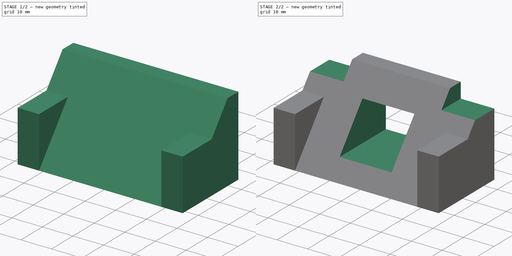
[diagram: build sequence overview — one tinted view per stage of 2, left to right]
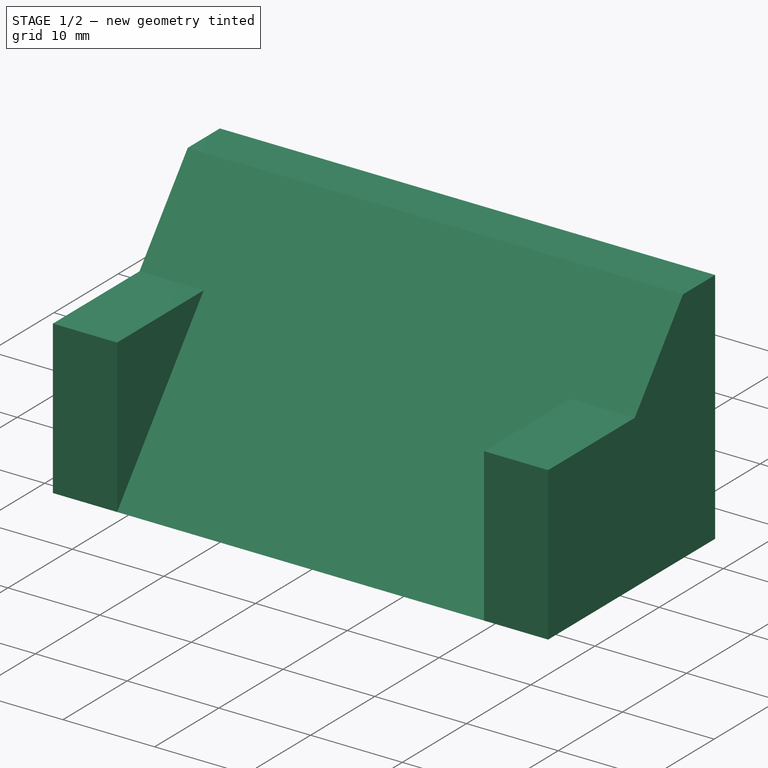
[diagram: stage 1 of 2 — iso view after this stage's code; geometry added in this stage tinted green]
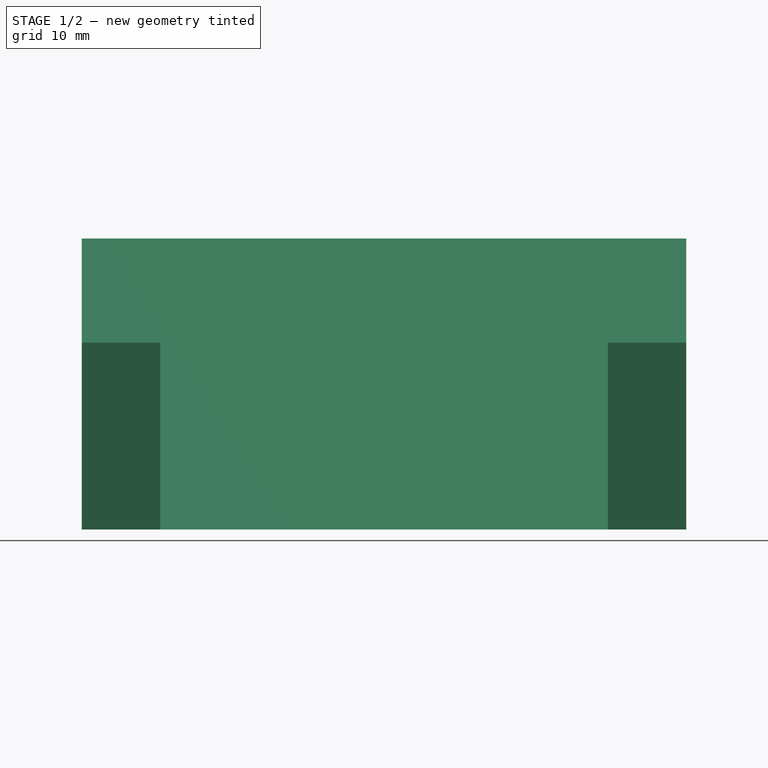
[diagram: stage 1 of 2 — front view after this stage's code; geometry added in this stage tinted green]
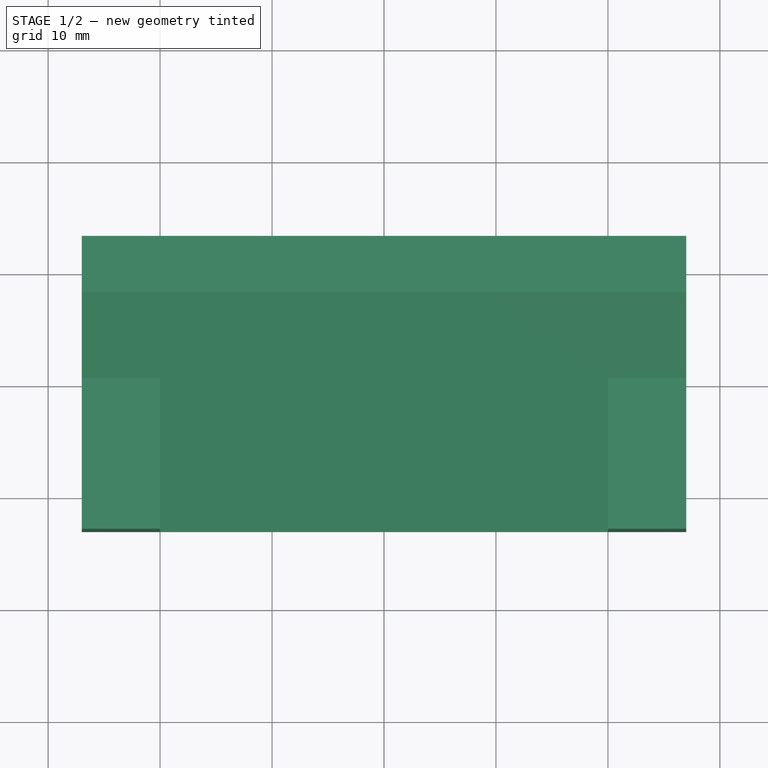
[diagram: stage 1 of 2 — top view after this stage's code; geometry added in this stage tinted green]
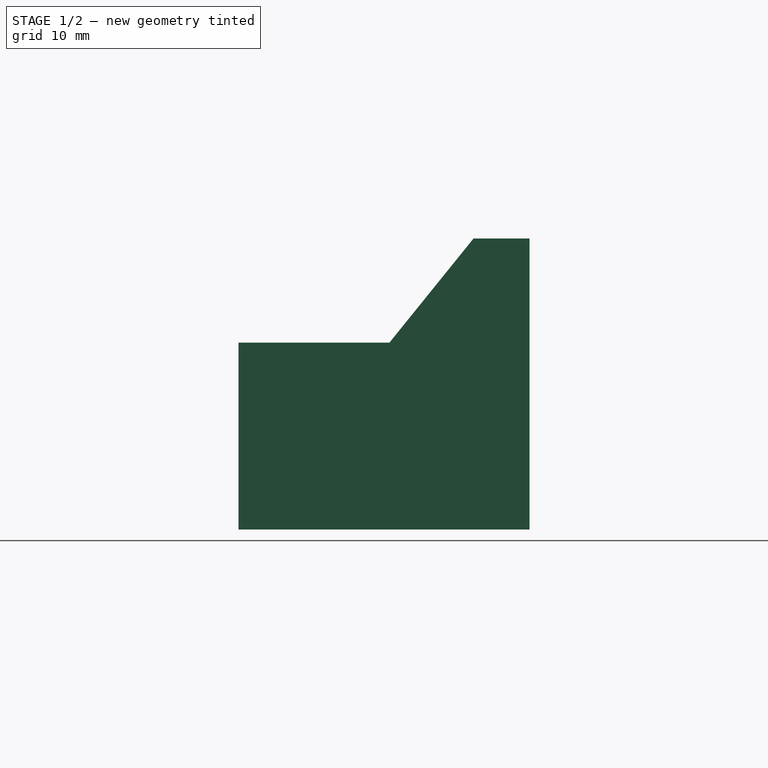
[diagram: stage 1 of 2 — right view after this stage's code; geometry added in this stage tinted green]
FCSTD DOCUMENT  (FreeCAD 0.17R9652 (Git))
Label: Beginner
License: All rights reserved
LicenseURL: http://en.wikipedia.org/wiki/All_rights_reserved
objects: Sketcher::SketchObject×6, PartDesign::Plane×3, PartDesign::Pad×2, PartDesign::Pocket×2, PartDesign::Body×1
note: 18 computed .brp shape members not serialized (recipe doc carries the construction recipe); baked Part::Feature solids carry a one-line shape summary decoded from their .brp

FEATURE [Sketcher::SketchObject] Sketch
  MapMode = 5
  Placement = pos=(0,0,0) rot=(0.57735,0.57735,0.57735;2.0944rad)
  Support = -> [YZ_Plane]
  sketch-geometry (4):
    g0: LineSegment StartX=8 StartY=13 StartZ=0 EndX=-13 EndY=-13 EndZ=0
    g1: LineSegment StartX=-13 StartY=-13 StartZ=0 EndX=13 EndY=-13 EndZ=0
    g2: LineSegment StartX=13 StartY=-13 StartZ=0 EndX=13 EndY=13 EndZ=0
    g3: LineSegment StartX=8 StartY=13 StartZ=0 EndX=13 EndY=13 EndZ=0
  constraints (12):
    c: Coincident(g0,g1)
    c: Coincident(g1,g2)
    c: Vertical(g2)
    c: Horizontal(g1)
    c: Symmetric(g0,g1,g-2)
    c: DistanceX(g1,g1) = 26
    c: Coincident(g3,g0)
    c: Coincident(g3,g2)
    c: Horizontal(g3)
    c: DistanceX(g3,g3) = 5
    c: Symmetric(g2,g1,g-1)
    c: DistanceY(g2,g2) = 26
FEATURE [PartDesign::Pad] Pad
  Length = 54
  Length2 = 100
  Midplane = true
  Placement = pos=(0,0,0) rot=(0.57735,0.57735,0.57735;2.0944rad)
  Profile = -> Sketch
  Type = 0
FEATURE [PartDesign::Plane] DatumPlane
  MapMode = 5
  Placement = pos=(0,0,-13) rot=(0,0,1;0rad)
  Support = -> [XY_Plane]
  superPlacement = pos=(0,0,-13) rot=(0,0,1;0rad)
FEATURE [Sketcher::SketchObject] Sketch001
  MapMode = 5
  Placement = pos=(0,0,-13) rot=(0,0,1;0rad)
  Support = -> [DatumPlane]
  sketch-geometry (8):
    g0: LineSegment StartX=-27 StartY=13 StartZ=0 EndX=-20 EndY=13 EndZ=0
    g1: LineSegment StartX=-20 StartY=13 StartZ=0 EndX=-20 EndY=-13 EndZ=0
    g2: LineSegment StartX=-20 StartY=-13 StartZ=0 EndX=-27 EndY=-13 EndZ=0
    g3: LineSegment StartX=-27 StartY=-13 StartZ=0 EndX=-27 EndY=13 EndZ=0
    g4: LineSegment StartX=27 StartY=13 StartZ=0 EndX=20 EndY=13 EndZ=0
    g5: LineSegment StartX=20 StartY=13 StartZ=0 EndX=20 EndY=-13 EndZ=0
    g6: LineSegment StartX=20 StartY=-13 StartZ=0 EndX=27 EndY=-13 EndZ=0
    g7: LineSegment StartX=27 StartY=-13 StartZ=0 EndX=27 EndY=13 EndZ=0
  constraints (24):
    c: Coincident(g0,g1)
    c: Coincident(g1,g2)
    c: Coincident(g2,g3)
    c: Coincident(g3,g0)
    c: Horizontal(g0)
    c: Horizontal(g2)
    c: Vertical(g1)
    c: Vertical(g3)
    c: Coincident(g4,g5)
    c: Coincident(g5,g6)
    c: Coincident(g6,g7)
    c: Coincident(g7,g4)
    c: Horizontal(g4)
    c: Horizontal(g6)
    c: Vertical(g5)
    c: Vertical(g7)
    c: Equal(g4,g0)
    c: Equal(g3,g7)
    c: Symmetric(g6,g4,g-1)
    c: Symmetric(g0,g2,g-1)
    c: Symmetric(g0,g4,g-2)
    c: DistanceX(g0,g0) = 7
    c: DistanceX(g0,g4) = 54
    c: DistanceY(g7,g7) = 26
FEATURE [PartDesign::Pad] Pad001
  BaseFeature = -> Pad
  Length = 16.7
  Length2 = 100
  Placement = pos=(0,0,0) rot=(0.57735,0.57735,0.57735;2.0944rad)
  Profile = -> Sketch001
  Type = 0
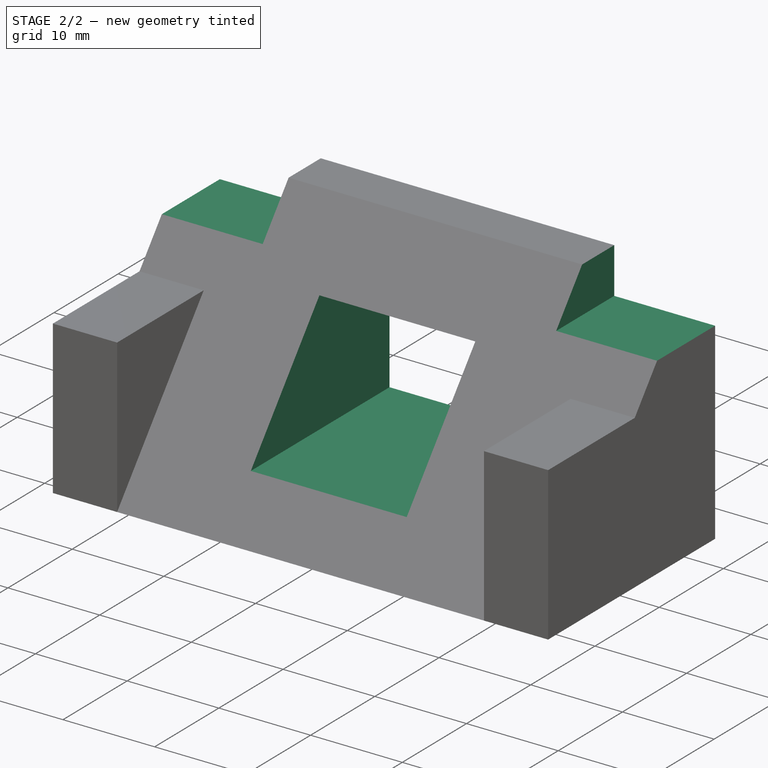
[diagram: stage 2 of 2 — iso view after this stage's code; geometry added in this stage tinted green]
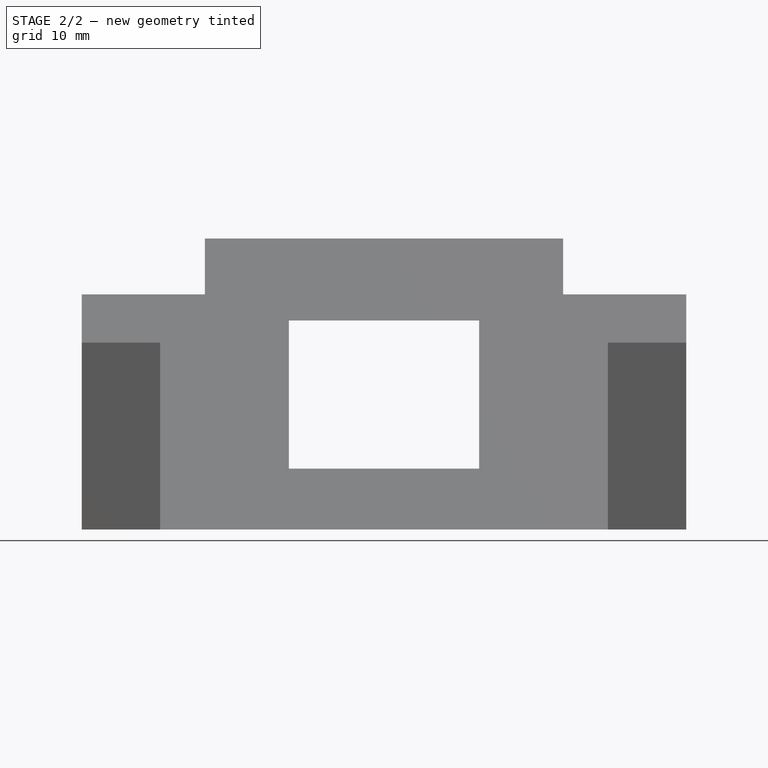
[diagram: stage 2 of 2 — front view after this stage's code; geometry added in this stage tinted green]
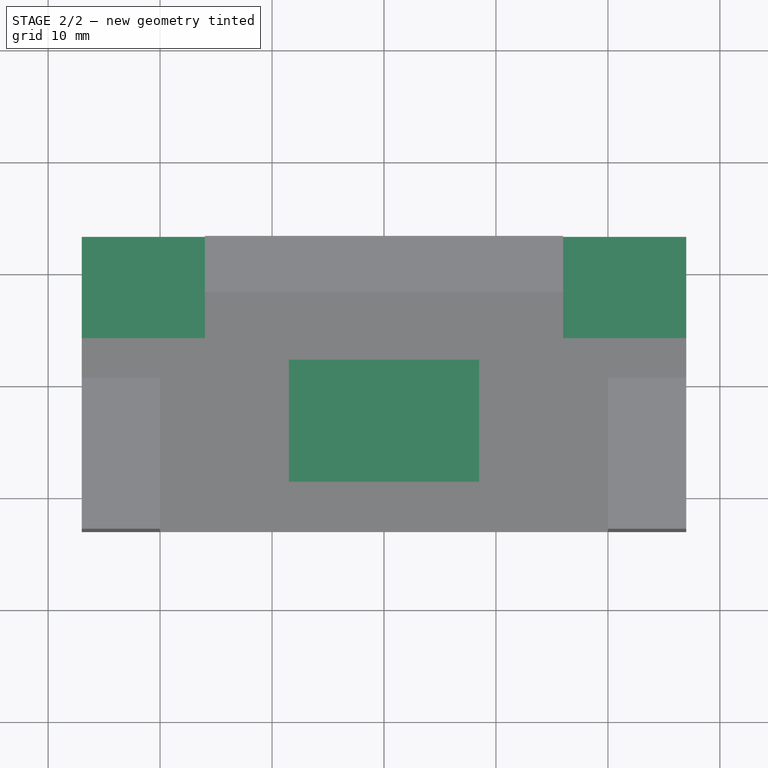
[diagram: stage 2 of 2 — top view after this stage's code; geometry added in this stage tinted green]
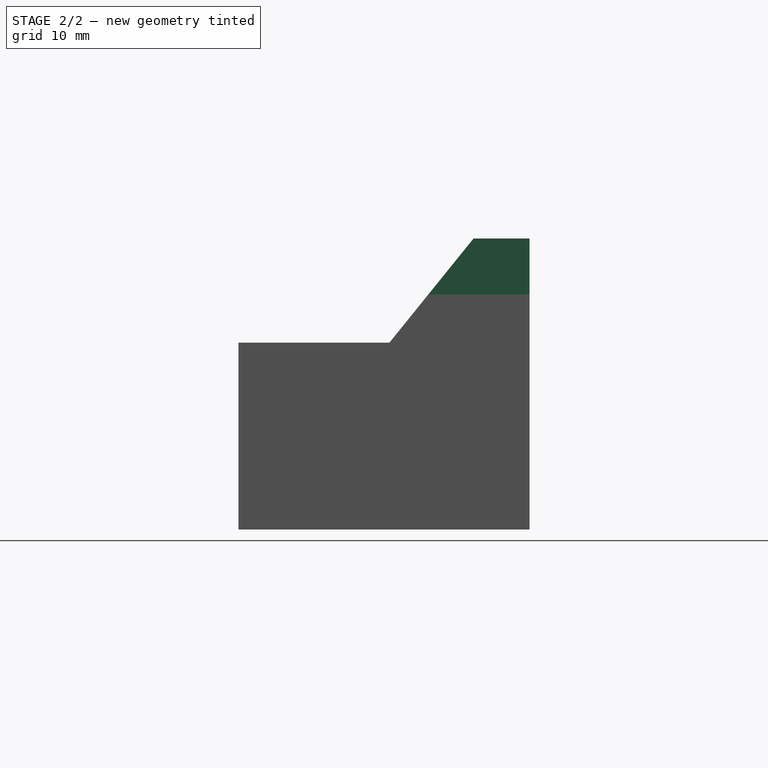
[diagram: stage 2 of 2 — right view after this stage's code; geometry added in this stage tinted green]
FEATURE [PartDesign::Plane] DatumPlane001
  MapMode = 5
  Placement = pos=(0,13,0) rot=(1,0,0;1.5708rad)
  Support = -> [XZ_Plane]
  superPlacement = pos=(0,0,-13) rot=(0,0,1;0rad)
FEATURE [Sketcher::SketchObject] Sketch002
  MapMode = 5
  Placement = pos=(0,13,0) rot=(1,0,0;1.5708rad)
  Support = -> [DatumPlane001]
  sketch-geometry (8):
    g0: LineSegment StartX=-27 StartY=13 StartZ=0 EndX=-16 EndY=13 EndZ=0
    g1: LineSegment StartX=-16 StartY=13 StartZ=0 EndX=-16 EndY=8 EndZ=0
    g2: LineSegment StartX=-16 StartY=8 StartZ=0 EndX=-27 EndY=8 EndZ=0
    g3: LineSegment StartX=-27 StartY=8 StartZ=0 EndX=-27 EndY=13 EndZ=0
    g4: LineSegment StartX=16 StartY=8 StartZ=0 EndX=27 EndY=8 EndZ=0
    g5: LineSegment StartX=27 StartY=8 StartZ=0 EndX=27 EndY=13 EndZ=0
    g6: LineSegment StartX=27 StartY=13 StartZ=0 EndX=16 EndY=13 EndZ=0
    g7: LineSegment StartX=16 StartY=13 StartZ=0 EndX=16 EndY=8 EndZ=0
  constraints (23):
    c: Coincident(g0,g1)
    c: Coincident(g1,g2)
    c: Coincident(g2,g3)
    c: Coincident(g3,g0)
    c: Horizontal(g0)
    c: Horizontal(g2)
    c: Vertical(g1)
    c: Vertical(g3)
    c: Coincident(g4,g5)
    c: Coincident(g5,g6)
    c: Coincident(g6,g7)
    c: Coincident(g7,g4)
    c: Horizontal(g4)
    c: Horizontal(g6)
    c: Vertical(g5)
    c: Vertical(g7)
    c: Equal(g0,g4)
    c: Equal(g3,g5)
    c: DistanceX(g0,g4) = 54
    c: DistanceY(g3,g3) = 5
    c: DistanceX(g0,g0) = 11
    c: DistanceY(g5) = 13
    c: Symmetric(g5,g0,g-2)
FEATURE [PartDesign::Pocket] Pocket
  BaseFeature = -> Pad001
  Length = 5
  Placement = pos=(0,0,0) rot=(0.57735,0.57735,0.57735;2.0944rad)
  Profile = -> Sketch002
  Reversed = true
  Type = 1
FEATURE [Sketcher::SketchObject] Sketch003
  MapMode = 5
  Placement = pos=(0,13,0) rot=(1,0,0;1.5708rad)
  Support = -> [DatumPlane001]
  sketch-geometry (4):
    g0: LineSegment StartX=-8.5 StartY=11 StartZ=0 EndX=8.5 EndY=11 EndZ=0
    g1: LineSegment StartX=8.5 StartY=11 StartZ=0 EndX=8.5 EndY=-6 EndZ=0
    g2: LineSegment StartX=8.5 StartY=-6 StartZ=0 EndX=-8.5 EndY=-6 EndZ=0
    g3: LineSegment StartX=-8.5 StartY=-6 StartZ=0 EndX=-8.5 EndY=11 EndZ=0
  constraints (12):
    c: Coincident(g0,g1)
    c: Coincident(g1,g2)
    c: Coincident(g2,g3)
    c: Coincident(g3,g0)
    c: Horizontal(g0)
    c: Horizontal(g2)
    c: Vertical(g1)
    c: Vertical(g3)
    c: DistanceY(g1) = -6
    c: Equal(g1,g0)
    c: DistanceX(g0,g0) = 17
    c: Symmetric(g0,g0,g-2)
FEATURE [PartDesign::Plane] DatumPlane002
  MapMode = 5
  Placement = pos=(0,-1.51298,1.22202) rot=(0.395866,0.395866,-0.828601;1.75771rad)
  Support = -> [Pocket]
FEATURE [Sketcher::SketchObject] Sketch004
  ExternalGeometry = -> [Pocket]
  MapMode = 5
  Placement = pos=(0,-1.51298,1.22202) rot=(0.395866,0.395866,-0.828601;1.75771rad)
  Support = -> [DatumPlane002]
  sketch-geometry (4):
    g0: LineSegment StartX=-5.71838 StartY=8.5 StartZ=0 EndX=11.2816 EndY=8.5 EndZ=0
    g1: LineSegment StartX=11.2816 StartY=8.5 StartZ=0 EndX=11.2816 EndY=-8.5 EndZ=0
    g2: LineSegment StartX=11.2816 StartY=-8.5 StartZ=0 EndX=-5.71838 EndY=-8.5 EndZ=0
    g3: LineSegment StartX=-5.71838 StartY=-8.5 StartZ=0 EndX=-5.71838 EndY=8.5 EndZ=0
  constraints (12):
    c: Coincident(g0,g1)
    c: Coincident(g1,g2)
    c: Coincident(g2,g3)
    c: Coincident(g3,g0)
    c: Horizontal(g0)
    c: Horizontal(g2)
    c: Vertical(g1)
    c: Vertical(g3)
    c: Symmetric(g2,g0,g-1)
    c: DistanceX(g1,g-3) = 7
    c: Equal(g0,g3)
    c: DistanceX(g0,g0) = 17
FEATURE [Sketcher::SketchObject] Sketch005
  ExternalGeometry = -> [Sketch004]
  MapMode = 5
  Placement = pos=(0,13,0) rot=(1,0,0;1.5708rad)
  Support = -> [DatumPlane001]
  sketch-geometry (4):
    g0: LineSegment StartX=-8.5 StartY=5.67059 StartZ=0 EndX=8.5 EndY=5.67059 EndZ=0
    g1: LineSegment StartX=8.5 StartY=5.67059 StartZ=0 EndX=8.5 EndY=-7.55441 EndZ=0
    g2: LineSegment StartX=8.5 StartY=-7.55441 StartZ=0 EndX=-8.5 EndY=-7.55441 EndZ=0
    g3: LineSegment StartX=-8.5 StartY=-7.55441 StartZ=0 EndX=-8.5 EndY=5.67059 EndZ=0
  constraints (10):
    c: Coincident(g0,g1)
    c: Coincident(g1,g2)
    c: Coincident(g2,g3)
    c: Coincident(g3,g0)
    c: Horizontal(g0)
    c: Horizontal(g2)
    c: Vertical(g1)
    c: Vertical(g3)
    c: Coincident(g0,g-3)
    c: Coincident(g1,g-6)
FEATURE [PartDesign::Pocket] Pocket001
  BaseFeature = -> Pocket
  Length = 0
  Placement = pos=(0,0,0) rot=(0.57735,0.57735,0.57735;2.0944rad)
  Profile = -> Sketch005
  Reversed = true
  Type = 1
FEATURE [PartDesign::Body] Body
  Group = -> [Sketch,Pad,DatumPlane,Sketch001,Pad001,DatumPlane001,Sketch002,Pocket,Sketch003,DatumPlane002,Sketch004,Sketch005,Pocket001]
  Origin = -> BodyOrigin
  Tip = -> Pocket001
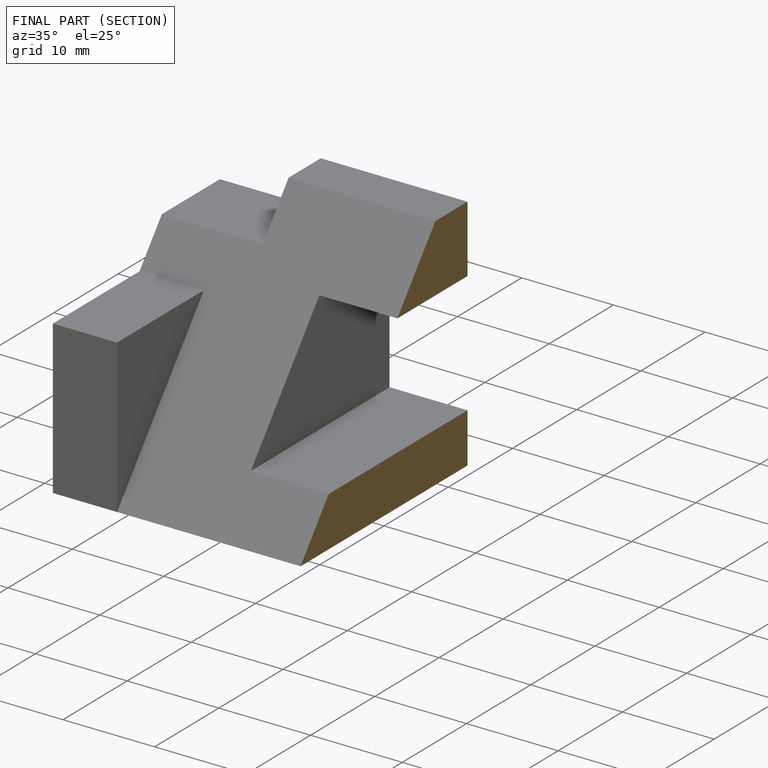
[diagram: finished part — half-section view (interior)]
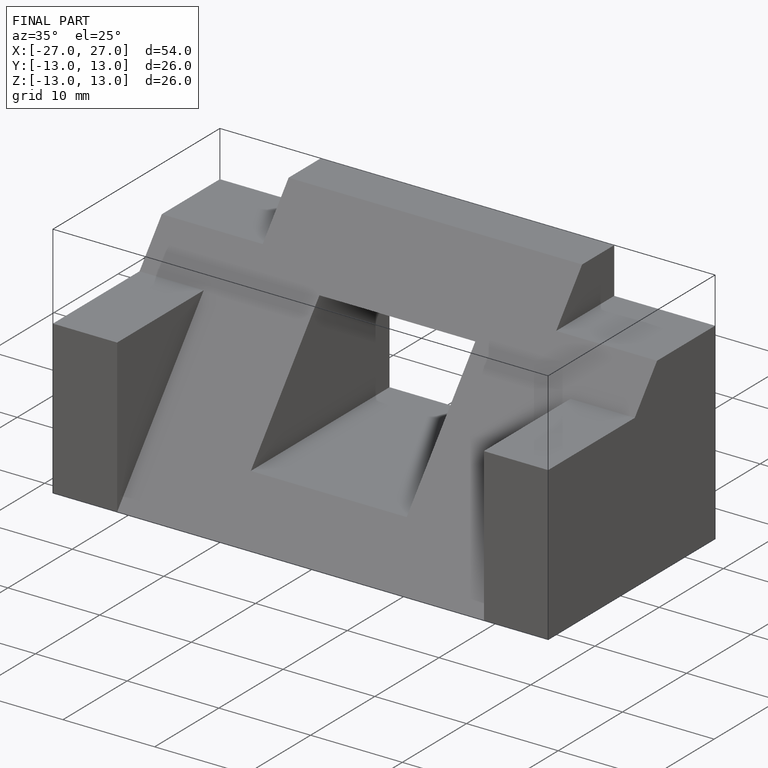
[diagram: finished part — iso view with bounding-box wireframe]
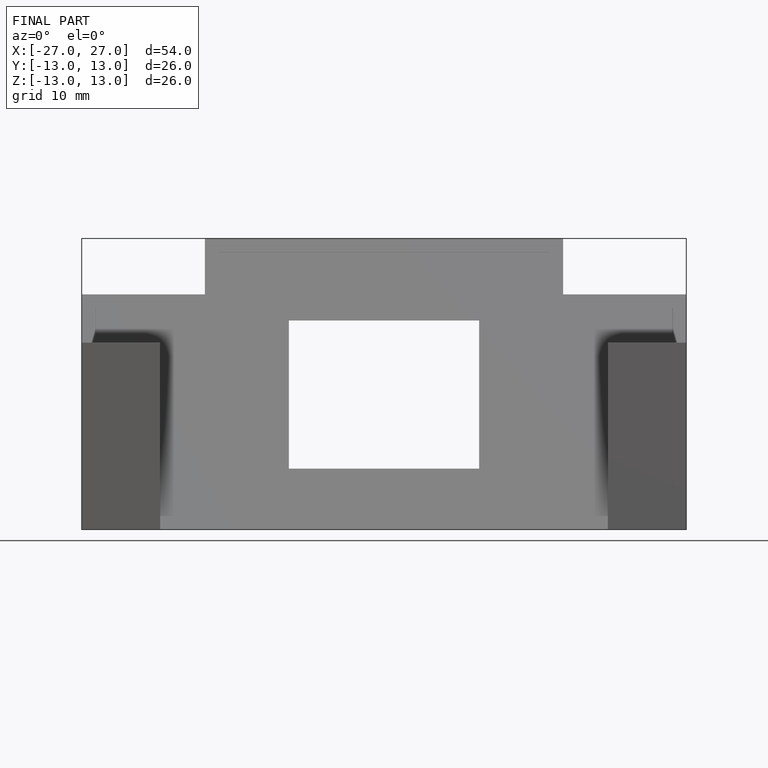
[diagram: finished part — front view with bounding-box wireframe]
